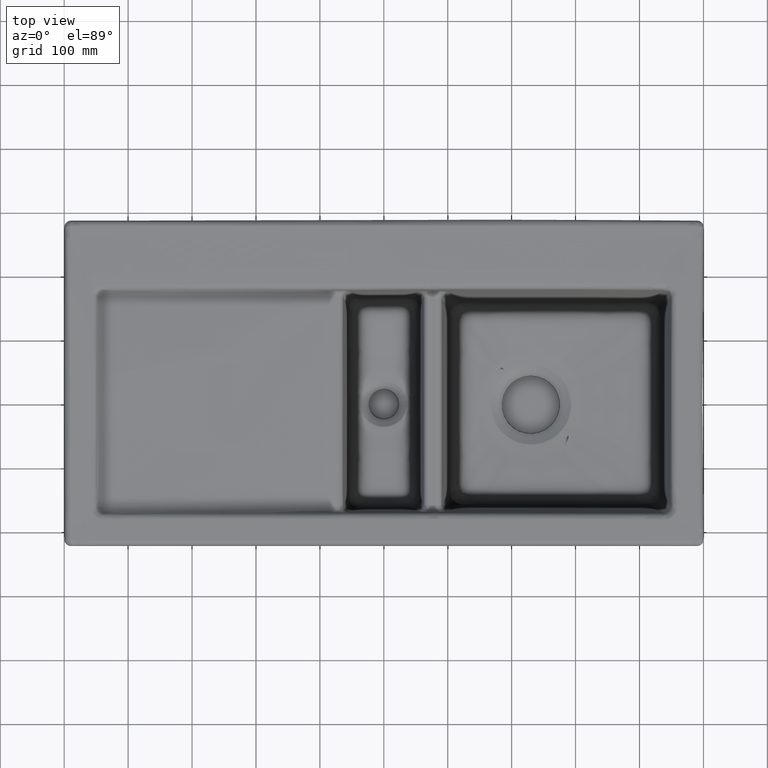
[diagram: clean part render]
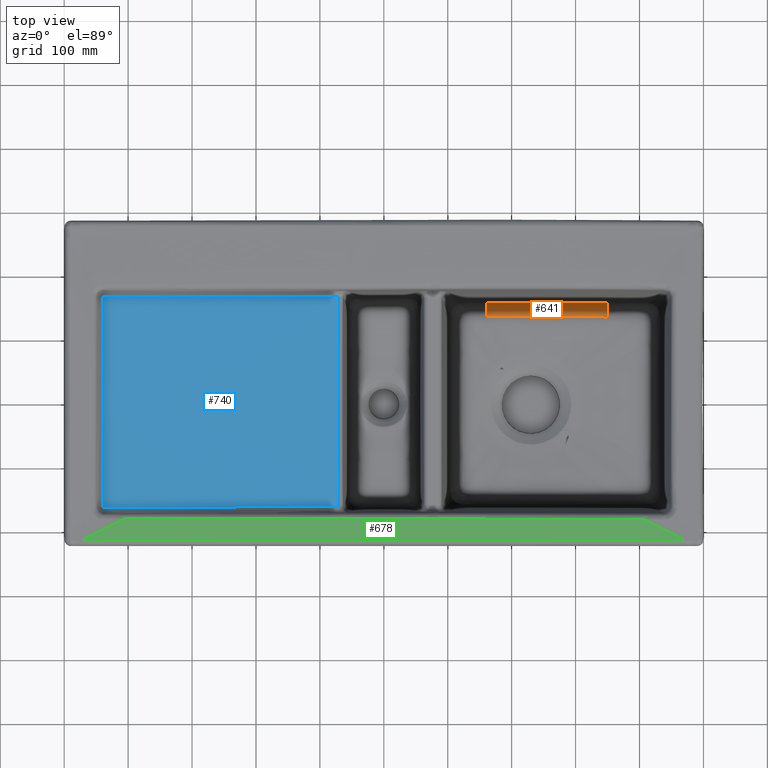
[diagram: same view with three faces highlighted in distinct colors, each labeled with its STEP entity id]
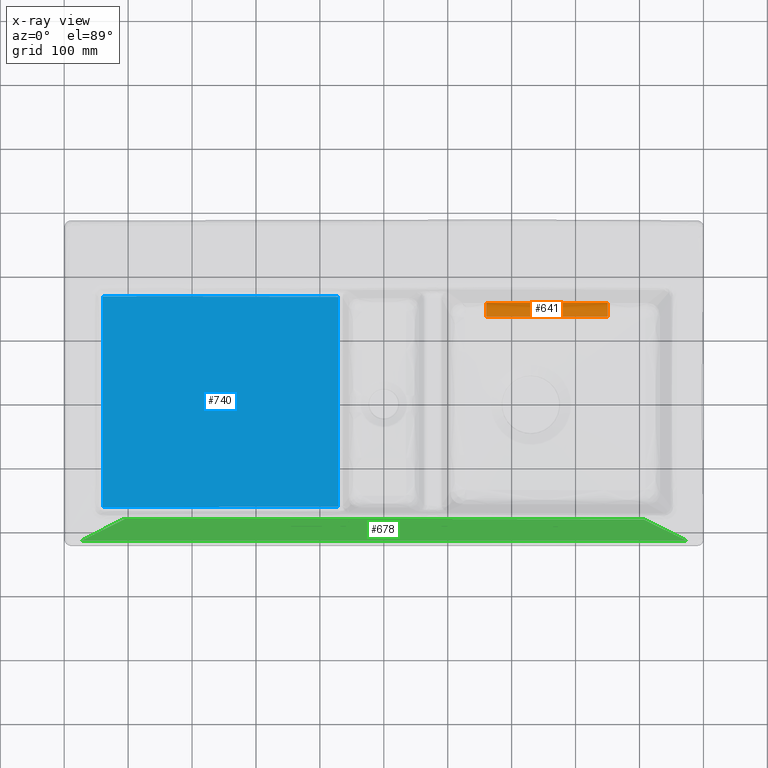
[diagram: x-ray of the same camera — body ghosted, the three highlighted faces saturated]
A machine part, top view with three faces highlighted in distinct colors.
The next image is the same camera in x-ray (body ghosted, the three faces saturated) — at least one of them is partly hidden behind the body in this view.
Their STEP definitions:

[orange] entity #641 — the highlighted face is a freeform B-spline surface patch.
#280=(
BOUNDED_CURVE()
B_SPLINE_CURVE(2,(#10913,#10914,#10915),.UNSPECIFIED.,.F.,.F.)
B_SPLINE_CURVE_WITH_KNOTS((3,3),(0.,1.),.UNSPECIFIED.)
CURVE()
GEOMETRIC_REPRESENTATION_ITEM()
RATIONAL_B_SPLINE_CURVE((1.,0.777580961998857,1.))
REPRESENTATION_ITEM('')
);
#281=(
BOUNDED_CURVE()
B_SPLINE_CURVE(2,(#10939,#10940,#10941),.UNSPECIFIED.,.F.,.F.)
B_SPLINE_CURVE_WITH_KNOTS((3,3),(0.,1.),.UNSPECIFIED.)
CURVE()
GEOMETRIC_REPRESENTATION_ITEM()
RATIONAL_B_SPLINE_CURVE((1.,0.775394905896192,0.999999999999999))
REPRESENTATION_ITEM('')
);
#409=(
BOUNDED_SURFACE()
B_SPLINE_SURFACE(2,3,((#10947,#10948,#10949,#10950,#10951,#10952),(#10953,
#10954,#10955,#10956,#10957,#10958),(#10959,#10960,#10961,#10962,#10963,
#10964)),.UNSPECIFIED.,.F.,.F.,.F.)
B_SPLINE_SURFACE_WITH_KNOTS((3,3),(4,2,4),(0.,1.),(0.,0.5,1.),
 .UNSPECIFIED.)
GEOMETRIC_REPRESENTATION_ITEM()
RATIONAL_B_SPLINE_SURFACE(((1.,1.,1.,1.,1.,1.),(0.777580961998857,0.779521084988759,
0.780561546570845,0.779726572306594,0.77791165024037,0.775394905896192),
(1.,1.,1.,1.,1.,1.)))
REPRESENTATION_ITEM('')
SURFACE()
);
#641=ADVANCED_FACE('',(#1154),#409,.T.);
#1154=FACE_OUTER_BOUND('',#1555,.T.);
#1555=EDGE_LOOP('',(#2172,#2173,#2174,#2175));
#2172=ORIENTED_EDGE('',*,*,#4596,.F.);
#2173=ORIENTED_EDGE('',*,*,#4597,.F.);
#2174=ORIENTED_EDGE('',*,*,#4594,.T.);
#2175=ORIENTED_EDGE('',*,*,#4540,.T.);
#3922=VERTEX_POINT('',#9541);
#3924=VERTEX_POINT('',#9656);
#3957=VERTEX_POINT('',#10916);
#3958=VERTEX_POINT('',#10942);
#4540=EDGE_CURVE('',#3922,#3924,#5475,.T.);
#4594=EDGE_CURVE('',#3957,#3922,#280,.T.);
#4596=EDGE_CURVE('',#3958,#3924,#281,.T.);
#4597=EDGE_CURVE('',#3957,#3958,#5513,.T.);
#5475=B_SPLINE_CURVE_WITH_KNOTS('',3,(#9657,#9658,#9659,#9660,#9661,#9662),
 .UNSPECIFIED.,.F.,.F.,(4,2,4),(0.,0.5,1.),.UNSPECIFIED.);
#5513=B_SPLINE_CURVE_WITH_KNOTS('',3,(#10943,#10944,#10945,#10946),
 .UNSPECIFIED.,.F.,.F.,(4,4),(0.,1.),.UNSPECIFIED.);
#9541=CARTESIAN_POINT('',(160.565931534428,137.768683874797,-192.461372557429));
#9656=CARTESIAN_POINT('',(350.024372323821,137.148389290437,-191.468480587461));
#9657=CARTESIAN_POINT('',(160.54717053819,137.853436572069,-192.453369032552));
#9658=CARTESIAN_POINT('',(192.126668436024,137.752696328659,-192.28770770071));
#9659=CARTESIAN_POINT('',(223.706182635008,137.651956029861,-192.122046283689));
#9660=CARTESIAN_POINT('',(286.865267033427,137.450475257621,-191.790723155477));
#9661=CARTESIAN_POINT('',(318.444837227567,137.349734783495,-191.625061444397));
#9662=CARTESIAN_POINT('',(350.02444607821,137.24899418284,-191.45939953083));
#10913=CARTESIAN_POINT('',(160.544730773734,158.616306277772,-173.145335691906));
#10914=CARTESIAN_POINT('',(160.544963113139,156.630149966016,-190.614643476994));
#10915=CARTESIAN_POINT('',(160.54717053819,137.853436572069,-192.453369032552));
#10916=CARTESIAN_POINT('',(160.544730773734,158.616306277772,-173.145335691906));
#10939=CARTESIAN_POINT('',(350.040070270705,158.560941991251,-173.145304157733));
#10940=CARTESIAN_POINT('',(350.038737163666,156.734036850523,-189.631786627503));
#10941=CARTESIAN_POINT('',(350.024446078209,137.24899418284,-191.45939953083));
#10942=CARTESIAN_POINT('',(350.040070270705,158.560941991251,-173.145304157733));
#10943=CARTESIAN_POINT('',(160.544730773734,158.616306277772,-173.145335691906));
#10944=CARTESIAN_POINT('',(223.709963134361,158.623976414063,-173.152569902232));
#10945=CARTESIAN_POINT('',(286.875206814576,158.60917850267,-173.166978607762));
#10946=CARTESIAN_POINT('',(350.040070270705,158.560941991251,-173.145304157733));
#10947=CARTESIAN_POINT('',(160.544730773734,158.616306277772,-173.145335691906));
#10948=CARTESIAN_POINT('',(192.127291311525,158.620552307106,-173.145338107712));
#10949=CARTESIAN_POINT('',(223.709849710922,158.618070778765,-173.145336697644));
#10950=CARTESIAN_POINT('',(286.874963246457,158.600352875084,-173.14532660451));
#10951=CARTESIAN_POINT('',(318.457519354763,158.58625964336,-173.145318576244));
#10952=CARTESIAN_POINT('',(350.040070270705,158.560941991251,-173.145304157733));
#10953=CARTESIAN_POINT('',(160.544963113139,156.630149966016,-190.614643476994));
#10954=CARTESIAN_POINT('',(192.127244477898,156.663066557749,-190.325248550403));
#10955=CARTESIAN_POINT('',(223.709509270593,156.690664561573,-190.077337827185));
#10956=CARTESIAN_POINT('',(286.874102394457,156.724565187057,-189.75542025251));
#10957=CARTESIAN_POINT('',(318.456414789741,156.731363440204,-189.678352398488));
#10958=CARTESIAN_POINT('',(350.038737163666,156.734036850522,-189.631786627503));
#10959=CARTESIAN_POINT('',(160.54717053819,137.853436572069,-192.453369032552));
#10960=CARTESIAN_POINT('',(192.126668436024,137.752696328659,-192.28770770071));
#10961=CARTESIAN_POINT('',(223.706182635008,137.651956029861,-192.122046283689));
#10962=CARTESIAN_POINT('',(286.865267033427,137.450475257621,-191.790723155477));
#10963=CARTESIAN_POINT('',(318.444837227567,137.349734783495,-191.625061444397));
#10964=CARTESIAN_POINT('',(350.02444607821,137.24899418284,-191.45939953083));

[blue] entity #740 — the highlighted face is a freeform B-spline surface patch.
#740=ADVANCED_FACE('',(#1252),#1024,.F.);
#1024=B_SPLINE_SURFACE_WITH_KNOTS('',3,1,((#16206,#16207),(#16208,#16209),
(#16210,#16211),(#16212,#16213),(#16214,#16215),(#16216,#16217),(#16218,
#16219),(#16220,#16221),(#16222,#16223),(#16224,#16225),(#16226,#16227),
(#16228,#16229),(#16230,#16231),(#16232,#16233)),.UNSPECIFIED.,.F.,.F.,
 .F.,(4,1,1,1,1,1,1,1,1,1,1,4),(2,2),(0.,0.125,0.1875,0.25,0.3125,0.375,
0.5,0.625,0.75,0.8125,0.875,1.),(0.,1.),.UNSPECIFIED.);
#1252=FACE_OUTER_BOUND('',#1655,.T.);
#1655=EDGE_LOOP('',(#2649,#2650,#2651,#2652,#2653,#2654));
#2649=ORIENTED_EDGE('',*,*,#4802,.F.);
#2650=ORIENTED_EDGE('',*,*,#4808,.T.);
#2651=ORIENTED_EDGE('',*,*,#4793,.F.);
#2652=ORIENTED_EDGE('',*,*,#4809,.T.);
#2653=ORIENTED_EDGE('',*,*,#4810,.T.);
#2654=ORIENTED_EDGE('',*,*,#4811,.T.);
#4065=VERTEX_POINT('',#15626);
#4066=VERTEX_POINT('',#15633);
#4067=VERTEX_POINT('',#15659);
#4069=VERTEX_POINT('',#15856);
#4070=VERTEX_POINT('',#15863);
#4071=VERTEX_POINT('',#15891);
#4793=EDGE_CURVE('',#4065,#4066,#5663,.T.);
#4802=EDGE_CURVE('',#4069,#4070,#5669,.T.);
#4808=EDGE_CURVE('',#4069,#4066,#5674,.T.);
#4809=EDGE_CURVE('',#4065,#4067,#5675,.T.);
#4810=EDGE_CURVE('',#4067,#4071,#5676,.T.);
#4811=EDGE_CURVE('',#4071,#4070,#5677,.T.);
#5663=B_SPLINE_CURVE_WITH_KNOTS('',3,(#15627,#15628,#15629,#15630,#15631,
#15632),.UNSPECIFIED.,.F.,.F.,(4,2,4),(0.,0.5,1.),.UNSPECIFIED.);
#5669=B_SPLINE_CURVE_WITH_KNOTS('',3,(#15857,#15858,#15859,#15860,#15861,
#15862),.UNSPECIFIED.,.F.,.F.,(4,2,4),(0.,0.5,1.),.UNSPECIFIED.);
#5674=B_SPLINE_CURVE_WITH_KNOTS('',3,(#16018,#16019,#16020,#16021,#16022,
#16023,#16024,#16025,#16026,#16027,#16028,#16029,#16030,#16031,#16032,#16033,
#16034,#16035,#16036,#16037,#16038,#16039,#16040,#16041,#16042,#16043,#16044,
#16045,#16046,#16047,#16048,#16049,#16050,#16051,#16052,#16053,#16054),
 .UNSPECIFIED.,.F.,.F.,(4,2,2,1,1,1,1,1,1,2,2,2,2,2,1,1,1,1,1,2,2,2,2,4),
(0.,0.124999999999982,0.187499999999973,0.218749999999968,0.234374999999966,
0.242187499999965,0.246093749999964,0.248046874999964,0.249023437499964,
0.249511718749963,0.249999999999963,0.374999999999969,0.437499999999972,
0.468749999999974,0.484374999999975,0.492187499999975,0.496093749999975,
0.498046874999975,0.499023437499975,0.499511718749975,0.499999999999975,
0.749999999999988,0.874999999999994,1.),.UNSPECIFIED.);
#5675=B_SPLINE_CURVE_WITH_KNOTS('',3,(#16097,#16098,#16099,#16100,#16101,
#16102,#16103,#16104,#16105,#16106,#16107,#16108,#16109,#16110,#16111,#16112,
#16113,#16114),.UNSPECIFIED.,.F.,.F.,(4,2,1,1,1,1,2,2,2,2,4),(0.,0.125000000000003,
0.187500000000005,0.218750000000006,0.234375000000006,0.242187500000006,
0.246093750000006,0.250000000000006,0.375000000000005,0.500000000000004,
1.),.UNSPECIFIED.);
#5676=B_SPLINE_CURVE_WITH_KNOTS('',3,(#16133,#16134,#16135,#16136),
 .UNSPECIFIED.,.F.,.F.,(4,4),(0.,1.),.UNSPECIFIED.);
#5677=B_SPLINE_CURVE_WITH_KNOTS('',3,(#16149,#16150,#16151,#16152,#16153,
#16154,#16155,#16156,#16157,#16158,#16159,#16160,#16161,#16162,#16163,#16164,
#16165,#16166,#16167,#16168,#16169,#16170,#16171,#16172,#16173,#16174,#16175),
 .UNSPECIFIED.,.F.,.F.,(4,2,2,2,1,1,1,1,2,2,2,1,1,1,2,2,4),(0.,0.12500000000001,
0.187500000000015,0.218750000000017,0.234375000000018,0.242187500000019,
0.246093750000019,0.248046875000019,0.249023437500019,0.250000000000019,
0.37500000000002,0.43750000000002,0.46875000000002,0.48437500000002,0.49218750000002,
0.500000000000019,1.),.UNSPECIFIED.);
#15626=CARTESIAN_POINT('',(-439.047881762958,-163.987201327337,-13.258969607282));
#15627=CARTESIAN_POINT('',(-439.047881762934,-163.987201327337,-13.2589696072825));
#15628=CARTESIAN_POINT('',(-439.150302194062,-163.987704241199,-13.2567417932943));
#15629=CARTESIAN_POINT('',(-439.315042148104,-163.917691479356,-13.2525740855755));
#15630=CARTESIAN_POINT('',(-439.476380957608,-163.757738539631,-13.2477248927003));
#15631=CARTESIAN_POINT('',(-439.548159840857,-163.598257929832,-13.2448197670326));
#15632=CARTESIAN_POINT('',(-439.548160469105,-163.488478075874,-13.2438856647933));
#15633=CARTESIAN_POINT('',(-439.54816046882,-163.488478235558,-13.2438856661582));
#15659=CARTESIAN_POINT('',(-71.5547055088539,-162.50836230303,-21.3432099478967));
#15856=CARTESIAN_POINT('',(-439.533276277385,165.632524219127,-13.3371003758123));
#15857=CARTESIAN_POINT('',(-439.533276217142,165.632862331858,-13.3371056541224));
#15858=CARTESIAN_POINT('',(-439.533258059027,165.734180420534,-13.3386873337737));
#15859=CARTESIAN_POINT('',(-439.462949873019,165.90039122705,-13.3426872598473));
#15860=CARTESIAN_POINT('',(-439.301951472272,166.060852457279,-13.3484153400991));
#15861=CARTESIAN_POINT('',(-439.141420807543,166.130630207692,-13.3527242183729));
#15862=CARTESIAN_POINT('',(-439.034879962926,166.130586375824,-13.3548676571197));
#15863=CARTESIAN_POINT('',(-439.03487950442,166.130586375636,-13.3548676663441));
#15891=CARTESIAN_POINT('',(-71.5470830659318,165.579832045051,-21.3358194373881));
#16018=CARTESIAN_POINT('',(-439.533276338339,165.632186106333,-13.3370950974809));
#16019=CARTESIAN_POINT('',(-439.535734258776,151.918779501085,-13.1230120675281));
#16020=CARTESIAN_POINT('',(-439.540205515046,138.206187427809,-12.8434863784739));
#16021=CARTESIAN_POINT('',(-439.549929473391,117.635523731376,-12.5141350345861));
#16022=CARTESIAN_POINT('',(-439.553673207967,110.778445163371,-12.4135870187165));
#16023=CARTESIAN_POINT('',(-439.560041082408,100.49256367879,-12.2783823711488));
#16024=CARTESIAN_POINT('',(-439.563413126268,95.3495594507016,-12.2145484883839));
#16025=CARTESIAN_POINT('',(-439.56767622958,89.3492917685648,-12.1464882879288));
#16026=CARTESIAN_POINT('',(-439.569890027459,86.3491357840142,-12.1140385965603));
#16027=CARTESIAN_POINT('',(-439.571017485853,84.8490524905194,-12.0982060086541));
#16028=CARTESIAN_POINT('',(-439.57158635465,84.0990095477985,-12.0903874236132));
#16029=CARTESIAN_POINT('',(-439.571872073917,83.7239877561109,-12.0865025138806));
#16030=CARTESIAN_POINT('',(-439.571994800356,83.5632640628534,-12.0848427726884));
#16031=CARTESIAN_POINT('',(-439.572076679165,83.4561149188924,-12.0837374380582));
#16032=CARTESIAN_POINT('',(-439.572142322448,83.3703002858255,-12.0828534645918));
#16033=CARTESIAN_POINT('',(-439.576338438794,77.8873251618175,-12.0264105640168));
#16034=CARTESIAN_POINT('',(-439.579762406577,68.3031296685318,-11.9310892650048));
#16035=CARTESIAN_POINT('',(-439.583746655864,47.7425693584388,-11.7961726967268));
#16036=CARTESIAN_POINT('',(-439.584880071091,39.8583402064341,-11.7530040439085));
#16037=CARTESIAN_POINT('',(-439.58631554338,26.4859034808068,-11.7038115964901));
#16038=CARTESIAN_POINT('',(-439.586750289553,21.7707428090458,-11.69003650656));
#16039=CARTESIAN_POINT('',(-439.587344530264,14.3114811762857,-11.6751502159726));
#16040=CARTESIAN_POINT('',(-439.587627234695,10.4852202796849,-11.6691534152739));
#16041=CARTESIAN_POINT('',(-439.587934156893,5.85214796573115,-11.6651137136413));
#16042=CARTESIAN_POINT('',(-439.588082237693,3.49333674430166,-11.6638877189381));
#16043=CARTESIAN_POINT('',(-439.588154977892,2.303362401866,-11.6634800607435));
#16044=CARTESIAN_POINT('',(-439.588191028745,1.70573305231471,-11.6633284307438));
#16045=CARTESIAN_POINT('',(-439.588206411333,1.4490400076591,-11.6632747248392));
#16046=CARTESIAN_POINT('',(-439.588216651401,1.27778549337677,-11.6632414375423));
#16047=CARTESIAN_POINT('',(-439.588223679162,1.159924179013,-11.6632207542592));
#16048=CARTESIAN_POINT('',(-439.589860075256,-26.3276041962547,-11.6586941005361));
#16049=CARTESIAN_POINT('',(-439.587951425358,-53.7615969381956,-11.7800466189497));
#16050=CARTESIAN_POINT('',(-439.577814971495,-94.9102406829173,-12.2149138030232));
#16051=CARTESIAN_POINT('',(-439.573137529608,-108.626002239649,-12.4064978509343));
#16052=CARTESIAN_POINT('',(-439.561111746568,-136.056578421231,-12.8686784306321));
#16053=CARTESIAN_POINT('',(-439.55395196129,-149.771564116399,-13.1270457292792));
#16054=CARTESIAN_POINT('',(-439.548160469103,-163.488478342014,-13.2438856670579));
#16097=CARTESIAN_POINT('',(-439.04788176298,-163.987201327337,-13.2589696072815));
#16098=CARTESIAN_POINT('',(-422.951735269209,-163.908164604904,-13.6090874492062));
#16099=CARTESIAN_POINT('',(-407.247542040691,-163.829284425715,-13.9510870171967));
#16100=CARTESIAN_POINT('',(-384.279177401951,-163.71382296501,-14.45191489522));
#16101=CARTESIAN_POINT('',(-372.941976399791,-163.656804390044,-14.6992852562087));
#16102=CARTESIAN_POINT('',(-359.972458333495,-163.592076080583,-14.9825523711502));
#16103=CARTESIAN_POINT('',(-353.552003311432,-163.560226644579,-15.1228519184806));
#16104=CARTESIAN_POINT('',(-350.357851791169,-163.544438847722,-15.1926680433082));
#16105=CARTESIAN_POINT('',(-348.992374564965,-163.537702866502,-15.2225177266683));
#16106=CARTESIAN_POINT('',(-348.082821937115,-163.533219024466,-15.242401621867));
#16107=CARTESIAN_POINT('',(-347.669466822668,-163.531182538613,-15.2514383978906));
#16108=CARTESIAN_POINT('',(-331.332842264282,-163.450758584917,-15.6086065599455));
#16109=CARTESIAN_POINT('',(-315.755953401706,-163.375928216567,-15.9496778056728));
#16110=CARTESIAN_POINT('',(-285.131544417924,-163.235330954749,-16.6212348293843));
#16111=CARTESIAN_POINT('',(-270.044381453587,-163.169403364156,-16.9525922668418));
#16112=CARTESIAN_POINT('',(-196.328408573442,-162.870579566783,-18.5740103658017));
#16113=CARTESIAN_POINT('',(-135.079593726273,-162.667983783837,-19.928964958191));
#16114=CARTESIAN_POINT('',(-71.5547053847978,-162.508362300832,-21.3432043754555));
#16133=CARTESIAN_POINT('',(-71.5547053847979,-162.508362300832,-21.3432043754555));
#16134=CARTESIAN_POINT('',(-71.5260477273734,-25.3576004691783,-21.3159677810755));
#16135=CARTESIAN_POINT('',(-71.5236299076853,84.0083496210039,-21.313778037));
#16136=CARTESIAN_POINT('',(-71.5470830541068,165.5798318304,-21.3358189414662));
#16149=CARTESIAN_POINT('',(-71.5470830541066,165.5798318304,-21.3358189414662));
#16150=CARTESIAN_POINT('',(-82.7054188267912,165.561820976812,-21.075640619236));
#16151=CARTESIAN_POINT('',(-95.9404147914734,165.578045271354,-20.7683094840082));
#16152=CARTESIAN_POINT('',(-118.907899015547,165.627201136103,-20.2397608183238));
#16153=CARTESIAN_POINT('',(-127.082892136363,165.647627947488,-20.0523322174932));
#16154=CARTESIAN_POINT('',(-140.124129385572,165.680158219598,-19.7548419490895));
#16155=CARTESIAN_POINT('',(-144.600999729977,165.691310710597,-19.6529548675219));
#16156=CARTESIAN_POINT('',(-151.510992138517,165.707928033848,-19.496112280446));
#16157=CARTESIAN_POINT('',(-155.01466006577,165.716208284987,-19.4166880849905));
#16158=CARTESIAN_POINT('',(-159.187448162788,165.725687189908,-19.3222884854305));
#16159=CARTESIAN_POINT('',(-161.295136090104,165.730364397665,-19.2746563787364));
#16160=CARTESIAN_POINT('',(-162.354303523463,165.732685315958,-19.2507325260675));
#16161=CARTESIAN_POINT('',(-162.809373166982,165.733675976568,-19.2404563764326));
#16162=CARTESIAN_POINT('',(-163.113006427885,165.734335498433,-19.2336004866989));
#16163=CARTESIAN_POINT('',(-163.293938453126,165.734727483845,-19.2295155456166));
#16164=CARTESIAN_POINT('',(-179.171449824373,165.769060301961,-18.8710720246476));
#16165=CARTESIAN_POINT('',(-194.704548726526,165.799986896351,-18.5236738295517));
#16166=CARTESIAN_POINT('',(-217.672200606463,165.843169776225,-18.0148441342983));
#16167=CARTESIAN_POINT('',(-229.073027428073,165.863959615522,-17.7634937040111));
#16168=CARTESIAN_POINT('',(-242.228743597022,165.887141995753,-17.4755615149782));
#16169=CARTESIAN_POINT('',(-248.770289567525,165.898506488839,-17.3329146469272));
#16170=CARTESIAN_POINT('',(-251.566028101898,165.903332847535,-17.2720620426182));
#16171=CARTESIAN_POINT('',(-253.4281246432,165.906541105077,-17.231556147708));
#16172=CARTESIAN_POINT('',(-254.317359237842,165.908070292329,-17.2122241193467));
#16173=CARTESIAN_POINT('',(-317.384793813281,166.016317701116,-15.8420137967376));
#16174=CARTESIAN_POINT('',(-378.633877705303,166.105736855728,-14.570043386994));
#16175=CARTESIAN_POINT('',(-439.034879177081,166.130586375501,-13.3548676729297));
#16206=CARTESIAN_POINT('',(-482.642244583243,-232.526133225565,-10.6517694139747));
#16207=CARTESIAN_POINT('',(4.04877294563433,-258.58041688024,-23.2788229601864));
#16208=CARTESIAN_POINT('',(-482.615797665335,-213.604764341611,-11.9707985932997));
#16209=CARTESIAN_POINT('',(4.04443635039155,-235.978604984054,-23.0625370517881));
#16210=CARTESIAN_POINT('',(-482.597473466016,-185.240064842655,-12.5833876291521));
#16211=CARTESIAN_POINT('',(4.04143166622129,-202.073041571011,-22.9620886476353));
#16212=CARTESIAN_POINT('',(-482.593662151024,-147.436250632353,-12.1414155183258));
#16213=CARTESIAN_POINT('',(4.04080671133909,-156.863035344385,-23.0345603874384));
#16214=CARTESIAN_POINT('',(-482.595657419905,-119.086616980823,-11.5442967971362));
#16215=CARTESIAN_POINT('',(4.04113388267791,-122.955001530727,-23.1324720690437));
#16216=CARTESIAN_POINT('',(-482.596560677061,-90.7350241532416,-11.0816686311094));
#16217=CARTESIAN_POINT('',(4.04128199296801,-89.0472889701375,-23.2083308557242));
#16218=CARTESIAN_POINT('',(-482.596437608358,-52.9305092343813,-10.6654567719235));
#16219=CARTESIAN_POINT('',(4.0412618129549,-43.8373976411882,-23.2765785953961));
#16220=CARTESIAN_POINT('',(-482.595451657348,-5.672162754449,-10.465160572812));
#16221=CARTESIAN_POINT('',(4.04110014305908,12.6745233271226,-23.3094218759334));
#16222=CARTESIAN_POINT('',(-482.595626429145,51.0377094870588,-10.6502013986489));
#16223=CARTESIAN_POINT('',(4.04112880101258,80.4888520249438,-23.2790800732393));
#16224=CARTESIAN_POINT('',(-482.595664267274,98.2935014269078,-11.1860884670083));
#16225=CARTESIAN_POINT('',(4.04113500546529,137.001191870283,-23.191208763646));
#16226=CARTESIAN_POINT('',(-482.595660062956,136.094203612007,-11.884761999162));
#16227=CARTESIAN_POINT('',(4.04113431606835,182.211708386755,-23.0766447782965));
#16228=CARTESIAN_POINT('',(-482.595660062997,173.892538536339,-12.7166283459983));
#16229=CARTESIAN_POINT('',(4.04113431607499,227.422613071399,-22.9402406931469));
#16230=CARTESIAN_POINT('',(-482.595660064677,202.249230275067,-12.8732214259136));
#16231=CARTESIAN_POINT('',(4.04113431635049,261.329489545383,-22.914563568585));
#16232=CARTESIAN_POINT('',(-482.595660067738,221.165569395068,-12.2802377369901));
#16233=CARTESIAN_POINT('',(4.04113431685248,283.932126189863,-23.0117972142348));

[green] entity #678 — the highlighted face is a freeform B-spline surface patch.
#678=ADVANCED_FACE('',(#1190),#1000,.F.);
#1000=B_SPLINE_SURFACE_WITH_KNOTS('',3,1,((#13047,#13048),(#13049,#13050),
(#13051,#13052),(#13053,#13054)),.UNSPECIFIED.,.F.,.F.,.F.,(4,4),(2,2),
(0.,1.),(0.,1.),.UNSPECIFIED.);
#1190=FACE_OUTER_BOUND('',#1593,.T.);
#1593=EDGE_LOOP('',(#2348,#2349,#2350,#2351,#2352,#2353,#2354,#2355));
#2348=ORIENTED_EDGE('',*,*,#4616,.T.);
#2349=ORIENTED_EDGE('',*,*,#4619,.T.);
#2350=ORIENTED_EDGE('',*,*,#4685,.F.);
#2351=ORIENTED_EDGE('',*,*,#4686,.T.);
#2352=ORIENTED_EDGE('',*,*,#4687,.F.);
#2353=ORIENTED_EDGE('',*,*,#4688,.F.);
#2354=ORIENTED_EDGE('',*,*,#4613,.T.);
#2355=ORIENTED_EDGE('',*,*,#4611,.T.);
#3937=VERTEX_POINT('',#10288);
#3939=VERTEX_POINT('',#10320);
#3966=VERTEX_POINT('',#11204);
#3968=VERTEX_POINT('',#11231);
#3970=VERTEX_POINT('',#11259);
#4008=VERTEX_POINT('',#13006);
#4009=VERTEX_POINT('',#13035);
#4010=VERTEX_POINT('',#13040);
#4611=EDGE_CURVE('',#3937,#3939,#5525,.T.);
#4613=EDGE_CURVE('',#3966,#3937,#5526,.T.);
#4616=EDGE_CURVE('',#3939,#3968,#5528,.T.);
#4619=EDGE_CURVE('',#3968,#3970,#5531,.T.);
#4685=EDGE_CURVE('',#4008,#3970,#5583,.T.);
#4686=EDGE_CURVE('',#4008,#4009,#5584,.T.);
#4687=EDGE_CURVE('',#4010,#4009,#5585,.T.);
#4688=EDGE_CURVE('',#3966,#4010,#5586,.T.);
#5525=B_SPLINE_CURVE_WITH_KNOTS('',3,(#11181,#11182,#11183,#11184),
 .UNSPECIFIED.,.F.,.F.,(4,4),(0.,1.),.UNSPECIFIED.);
#5526=B_SPLINE_CURVE_WITH_KNOTS('',3,(#11205,#11206,#11207,#11208),
 .UNSPECIFIED.,.F.,.F.,(4,4),(0.,1.),.UNSPECIFIED.);
#5528=B_SPLINE_CURVE_WITH_KNOTS('',3,(#11232,#11233,#11234,#11235),
 .UNSPECIFIED.,.F.,.F.,(4,4),(0.,1.),.UNSPECIFIED.);
#5531=B_SPLINE_CURVE_WITH_KNOTS('',3,(#11260,#11261,#11262,#11263),
 .UNSPECIFIED.,.F.,.F.,(4,4),(0.,1.),.UNSPECIFIED.);
#5583=B_SPLINE_CURVE_WITH_KNOTS('',3,(#13002,#13003,#13004,#13005),
 .UNSPECIFIED.,.F.,.F.,(4,4),(0.,1.),.UNSPECIFIED.);
#5584=B_SPLINE_CURVE_WITH_KNOTS('',3,(#13007,#13008,#13009,#13010,#13011,
#13012,#13013,#13014,#13015,#13016,#13017,#13018,#13019,#13020,#13021,#13022,
#13023,#13024,#13025,#13026,#13027,#13028,#13029,#13030,#13031,#13032,#13033,
#13034),.UNSPECIFIED.,.F.,.F.,(4,2,1,1,1,1,1,1,1,2,2,2,1,1,1,1,1,2,2,4),
(0.,0.25,0.375,0.4375,0.46875,0.484375,0.4921875,0.49609375,0.498046875,
0.4990234375,0.5,0.625000000000002,0.687500000000003,0.718750000000004,
0.734375000000004,0.742187500000004,0.746093750000004,0.748046875000004,
0.750000000000004,1.),.UNSPECIFIED.);
#5585=B_SPLINE_CURVE_WITH_KNOTS('',3,(#13036,#13037,#13038,#13039),
 .UNSPECIFIED.,.F.,.F.,(4,4),(0.,1.),.UNSPECIFIED.);
#5586=B_SPLINE_CURVE_WITH_KNOTS('',3,(#13041,#13042,#13043,#13044,#13045,
#13046),.UNSPECIFIED.,.F.,.F.,(4,1,1,4),(0.,0.50688846989366,0.887038959839202,
1.),.UNSPECIFIED.);
#10288=CARTESIAN_POINT('',(473.452356465737,-216.194398641281,-0.166398384868314));
#10320=CARTESIAN_POINT('',(406.962749745146,-183.097891568416,-0.823452602657049));
#11181=CARTESIAN_POINT('',(473.45235646111,-216.194398638485,-0.166398367828223));
#11182=CARTESIAN_POINT('',(451.423595915296,-205.229155079353,-0.383966338542537));
#11183=CARTESIAN_POINT('',(429.260207105539,-194.196897744965,-0.602984354886974));
#11184=CARTESIAN_POINT('',(406.962720923139,-183.097890720324,-0.823452414048761));
#11204=CARTESIAN_POINT('',(-472.936834583959,-216.195034429656,-0.166398385448423));
#11205=CARTESIAN_POINT('',(-472.936836178022,-216.195034216429,-0.166398368568766));
#11206=CARTESIAN_POINT('',(-157.476223879374,-214.951402317117,-0.166398368568766));
#11207=CARTESIAN_POINT('',(157.991741657257,-214.951190445461,-0.166398368568766));
#11208=CARTESIAN_POINT('',(473.452356461256,-216.194398601458,-0.166398368568766));
#11231=CARTESIAN_POINT('',(86.9013773108529,-182.474381038436,-0.822777762817155));
#11232=CARTESIAN_POINT('',(406.962720308424,-183.097890718307,-0.823452414047467));
#11233=CARTESIAN_POINT('',(300.274697702183,-182.747848526845,-0.823228028434057));
#11234=CARTESIAN_POINT('',(193.58739433371,-182.539990829159,-0.823003642820647));
#11235=CARTESIAN_POINT('',(86.9013786814487,-182.474306291786,-0.822779257207237));
#11259=CARTESIAN_POINT('',(65.9451040352428,-182.461469581277,-0.822770440066878));
#11260=CARTESIAN_POINT('',(86.9013786814487,-182.474306291786,-0.822779257207237));
#11261=CARTESIAN_POINT('',(79.9159532536592,-182.469371096648,-0.822777253269228));
#11262=CARTESIAN_POINT('',(72.9305280096755,-182.465045418333,-0.82277524933122));
#11263=CARTESIAN_POINT('',(65.9451031090588,-182.461329256407,-0.822773245393211));
#13002=CARTESIAN_POINT('',(-65.7367857807658,-182.461560826454,-0.82277375096873));
#13003=CARTESIAN_POINT('',(-21.8428295915548,-182.438655986183,-0.822748809960324));
#13004=CARTESIAN_POINT('',(22.0511333366871,-182.438715379064,-0.822745909629805));
#13005=CARTESIAN_POINT('',(65.9451029521414,-182.461629846716,-0.822767233586728));
#13006=CARTESIAN_POINT('',(-65.7377178519782,-182.461646514744,-0.82277204824032));
#13007=CARTESIAN_POINT('',(-65.7387207050654,-182.461561836117,-0.822773752068948));
#13008=CARTESIAN_POINT('',(-89.7130778608558,-182.474071608258,-0.822787393864756));
#13009=CARTESIAN_POINT('',(-115.871854305647,-182.476893367848,-0.82316122443906));
#13010=CARTESIAN_POINT('',(-158.389401096101,-182.47302304581,-0.824262253468259));
#13011=CARTESIAN_POINT('',(-180.468033134297,-182.469079034195,-0.824947838774795));
#13012=CARTESIAN_POINT('',(-207.661930144267,-182.462547413789,-0.825984062184974));
#13013=CARTESIAN_POINT('',(-221.617854692867,-182.459010569468,-0.826561267361535));
#13014=CARTESIAN_POINT('',(-228.685574111507,-182.457201204682,-0.826864643317684));
#13015=CARTESIAN_POINT('',(-232.24187478329,-182.456289684076,-0.827020024637725));
#13016=CARTESIAN_POINT('',(-234.02563557151,-182.455832641745,-0.827098638633238));
#13017=CARTESIAN_POINT('',(-234.918918605301,-182.45560385369,-0.827138176464867));
#13018=CARTESIAN_POINT('',(-235.302054759715,-182.45550575023,-0.827155170714252));
#13019=CARTESIAN_POINT('',(-235.557545655976,-182.455440337134,-0.827166511205932));
#13020=CARTESIAN_POINT('',(-235.729866076869,-182.455396223614,-0.827174166820632));
#13021=CARTESIAN_POINT('',(-246.411835279964,-182.452661876537,-0.827648978302216));
#13022=CARTESIAN_POINT('',(-258.797570063455,-182.449366530697,-0.828229286130578));
#13023=CARTESIAN_POINT('',(-280.056667358979,-182.446039495555,-0.829263513457026));
#13024=CARTESIAN_POINT('',(-291.356343019645,-182.444791207208,-0.829821568516227));
#13025=CARTESIAN_POINT('',(-305.712193759802,-182.444724776368,-0.830544280194921));
#13026=CARTESIAN_POINT('',(-313.183367295478,-182.445130805691,-0.830923547895007));
#13027=CARTESIAN_POINT('',(-316.992269201033,-182.445455349205,-0.831117659710235));
#13028=CARTESIAN_POINT('',(-318.915049333804,-182.445649497938,-0.831215835109146));
#13029=CARTESIAN_POINT('',(-319.7430256864,-182.445739697079,-0.831258150171099));
#13030=CARTESIAN_POINT('',(-320.295882753864,-182.445801401806,-0.831286413521511));
#13031=CARTESIAN_POINT('',(-320.519922636254,-182.445826860737,-0.831297869666373));
#13032=CARTESIAN_POINT('',(-363.123850315233,-182.450809971484,-0.833477215688799));
#13033=CARTESIAN_POINT('',(-391.471812254493,-182.475280208566,-0.834902240729015));
#13034=CARTESIAN_POINT('',(-405.886837387597,-182.489663096944,-0.835589838942233));
#13035=CARTESIAN_POINT('',(-405.886916544394,-182.496526584878,-0.835452907054117));
#13036=CARTESIAN_POINT('',(-407.099667662062,-183.099340614832,-0.823478963995821));
#13037=CARTESIAN_POINT('',(-406.695642443571,-182.896241122313,-0.827513501085108));
#13038=CARTESIAN_POINT('',(-406.291617225406,-182.693141629957,-0.831548078883389));
#13039=CARTESIAN_POINT('',(-405.887592007564,-182.490042137764,-0.8355826973941));
#13040=CARTESIAN_POINT('',(-407.099667858515,-183.099340417734,-0.823478775428356));
#13041=CARTESIAN_POINT('',(-472.936835563336,-216.195035162738,-0.166398388836992));
#13042=CARTESIAN_POINT('',(-461.81280144616,-210.603092799252,-0.277359885162268));
#13043=CARTESIAN_POINT('',(-442.346090282533,-200.817368871581,-0.471592787967347));
#13044=CARTESIAN_POINT('',(-420.400368286294,-189.785470620149,-0.690666812579728));
#13045=CARTESIAN_POINT('',(-409.578679966078,-184.345514510357,-0.798723930354336));
#13046=CARTESIAN_POINT('',(-407.099668447811,-183.099339841858,-0.823478979508474));
#13047=CARTESIAN_POINT('',(595.39321252341,-225.056830949893,0.));
#13048=CARTESIAN_POINT('',(619.681067565232,-125.177170195695,-2.));
#13049=CARTESIAN_POINT('',(198.69487028559,-223.090482659598,0.));
#13050=CARTESIAN_POINT('',(206.791422343012,-123.050370497431,-2.));
#13051=CARTESIAN_POINT('',(-198.018091952514,-223.090482659598,0.));
#13052=CARTESIAN_POINT('',(-206.114644010004,-123.050370497431,-2.));
#13053=CARTESIAN_POINT('',(-594.71643419053,-225.056830949893,0.));
#13054=CARTESIAN_POINT('',(-619.004289232387,-125.177170195695,-2.));